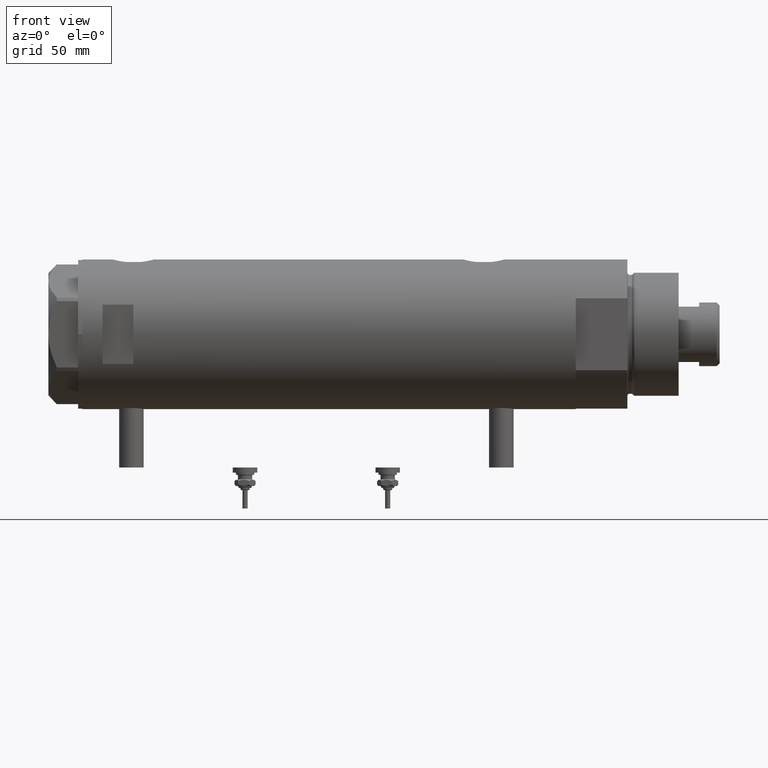
[diagram: clean part render]
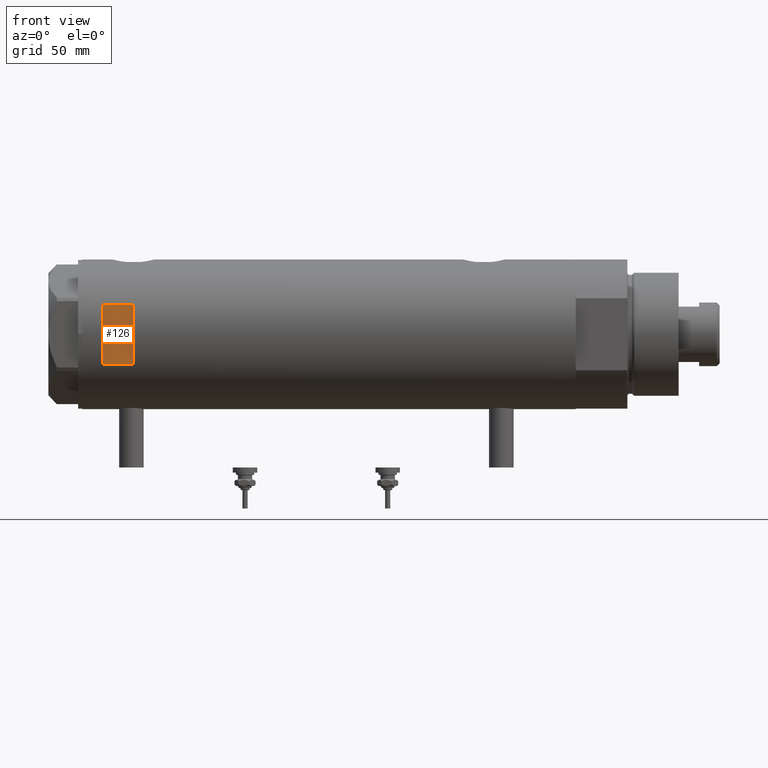
[diagram: same view with one face highlighted and labeled with its STEP entity id]
A machine part, front view. The second image highlights one B-rep face of the part: STEP entity #126.
In plain terms, the highlighted planar face has unit normal (-0, 1, 0).
Its self-contained STEP definition (entity closure, byte-faithful):
#126 = ADVANCED_FACE ( 'NONE', ( #3487 ), #261, .F. ) ;
#189 = ORIENTED_EDGE ( 'NONE', *, *, #3693, .T. ) ;
#194 = LINE ( 'NONE', #5127, #3826 ) ;
#261 = PLANE ( 'NONE',  #1203 ) ;
#351 = VERTEX_POINT ( 'NONE', #1648 ) ;
#423 = EDGE_CURVE ( 'NONE', #351, #5691, #1185, .T. ) ;
#537 = VECTOR ( 'NONE', #4346, 1000.000000000000000 ) ;
#618 = CARTESIAN_POINT ( 'NONE',  ( -36.50000000000000000, -33.50000000000000000, 110.3999999999999915 ) ) ;
#674 = LINE ( 'NONE', #2449, #2567 ) ;
#1120 = DIRECTION ( 'NONE',  ( 1.000000000000000000, -0.000000000000000000, -0.000000000000000000 ) ) ;
#1165 = DIRECTION ( 'NONE',  ( 0.000000000000000000, -0.000000000000000000, 1.000000000000000000 ) ) ;
#1185 = LINE ( 'NONE', #3009, #537 ) ;
#1203 = AXIS2_PLACEMENT_3D ( 'NONE', #618, #5202, #1165 ) ;
#1212 = DIRECTION ( 'NONE',  ( 0.000000000000000000, 0.000000000000000000, 1.000000000000000000 ) ) ;
#1320 = VERTEX_POINT ( 'NONE', #5057 ) ;
#1387 = CARTESIAN_POINT ( 'NONE',  ( -14.49137674618942739, -33.50000000000000000, 95.40000000000000568 ) ) ;
#1622 = VECTOR ( 'NONE', #1212, 1000.000000000000000 ) ;
#1648 = CARTESIAN_POINT ( 'NONE',  ( -14.49137674618942739, -33.50000000000000000, 110.3999999999999915 ) ) ;
#1891 = ORIENTED_EDGE ( 'NONE', *, *, #3211, .T. ) ;
#2449 = CARTESIAN_POINT ( 'NONE',  ( -14.49137674618942739, -33.50000000000000000, -120.4000000000000057 ) ) ;
#2567 = VECTOR ( 'NONE', #5524, 1000.000000000000000 ) ;
#2600 = CARTESIAN_POINT ( 'NONE',  ( 14.49137674618942739, -33.50000000000000000, 110.3999999999999915 ) ) ;
#3009 = CARTESIAN_POINT ( 'NONE',  ( -36.50000000000000000, -33.50000000000000000, 110.3999999999999915 ) ) ;
#3211 = EDGE_CURVE ( 'NONE', #351, #4977, #674, .T. ) ;
#3487 = FACE_OUTER_BOUND ( 'NONE', #4181, .T. ) ;
#3587 = EDGE_CURVE ( 'NONE', #4977, #1320, #194, .T. ) ;
#3693 = EDGE_CURVE ( 'NONE', #1320, #5691, #5327, .T. ) ;
#3826 = VECTOR ( 'NONE', #1120, 1000.000000000000000 ) ;
#4043 = CARTESIAN_POINT ( 'NONE',  ( 14.49137674618942739, -33.50000000000000000, -120.4000000000000057 ) ) ;
#4181 = EDGE_LOOP ( 'NONE', ( #1891, #5668, #189, #4871 ) ) ;
#4346 = DIRECTION ( 'NONE',  ( 1.000000000000000000, -0.000000000000000000, -0.000000000000000000 ) ) ;
#4871 = ORIENTED_EDGE ( 'NONE', *, *, #423, .F. ) ;
#4977 = VERTEX_POINT ( 'NONE', #1387 ) ;
#5057 = CARTESIAN_POINT ( 'NONE',  ( 14.49137674618942739, -33.50000000000000000, 95.40000000000000568 ) ) ;
#5127 = CARTESIAN_POINT ( 'NONE',  ( -36.50000000000000000, -33.50000000000000000, 95.40000000000000568 ) ) ;
#5202 = DIRECTION ( 'NONE',  ( 0.000000000000000000, 1.000000000000000000, 0.000000000000000000 ) ) ;
#5327 = LINE ( 'NONE', #4043, #1622 ) ;
#5524 = DIRECTION ( 'NONE',  ( -0.000000000000000000, -0.000000000000000000, -1.000000000000000000 ) ) ;
#5668 = ORIENTED_EDGE ( 'NONE', *, *, #3587, .T. ) ;
#5691 = VERTEX_POINT ( 'NONE', #2600 ) ;